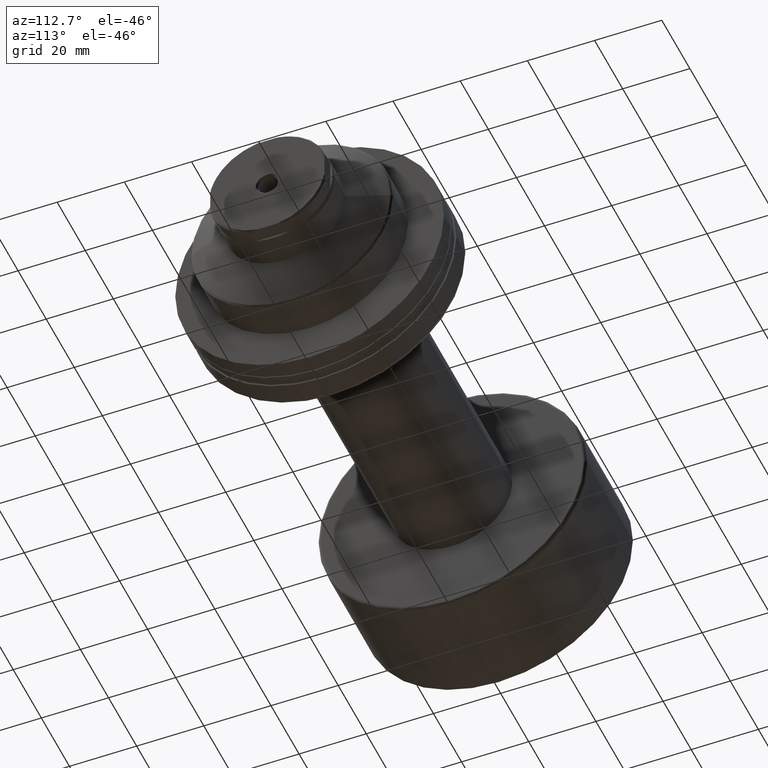
[diagram: clean part render]
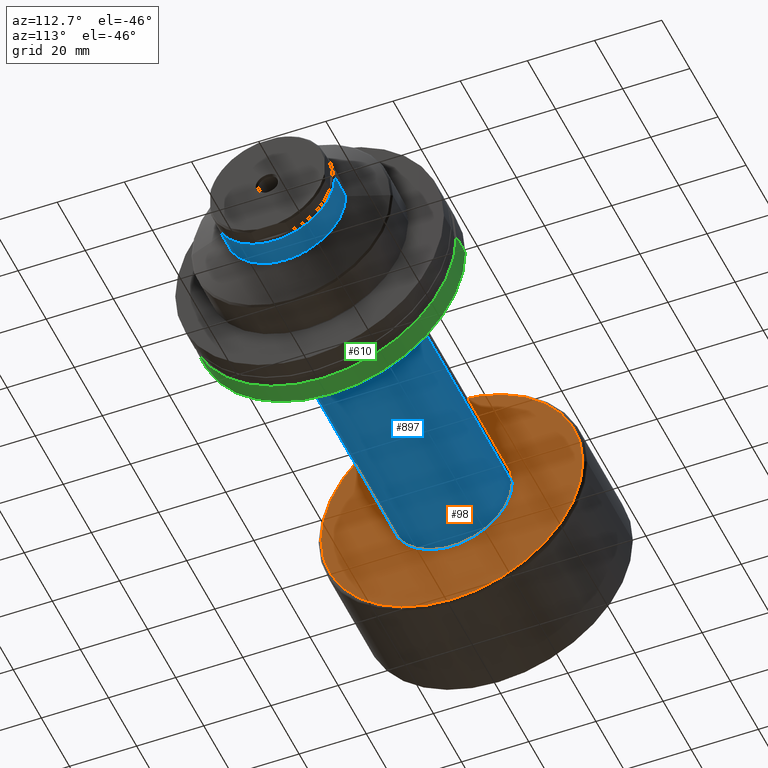
[diagram: same view with three faces highlighted in distinct colors, each labeled with its STEP entity id]
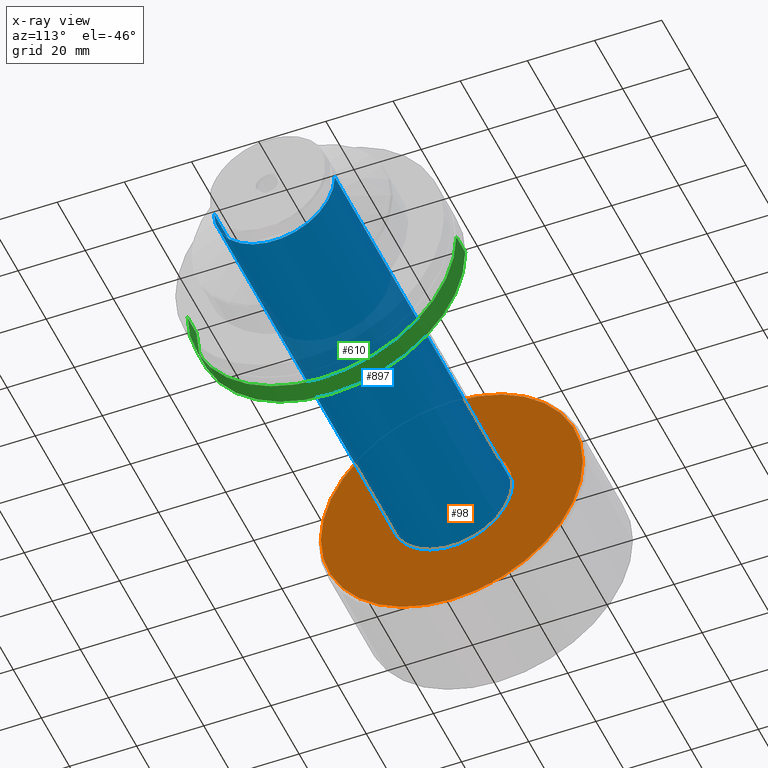
[diagram: x-ray of the same camera — body ghosted, the three highlighted faces saturated]
A machine part, auxiliary view with three faces highlighted in distinct colors.
The next image is the same camera in x-ray (body ghosted, the three faces saturated) — at least one of them is partly hidden behind the body in this view.
Their STEP definitions:

[orange] entity #98 — the highlighted planar face has unit normal (-1, -0, 0).
#24 = CIRCLE ( 'NONE', #120, 18.00000000000000000 ) ;
#25 = CIRCLE ( 'NONE', #1088, 38.99999999999999289 ) ;
#88 = CARTESIAN_POINT ( 'NONE',  ( 34.70000000000001705, -18.00000000000000000, 0.000000000000000000 ) ) ;
#98 = ADVANCED_FACE ( 'NONE', ( #1427, #1523 ), #1666, .F. ) ;
#112 = CARTESIAN_POINT ( 'NONE',  ( 34.70000000000001705, -38.99999999999999289, 0.000000000000000000 ) ) ;
#120 = AXIS2_PLACEMENT_3D ( 'NONE', #779, #1430, #560 ) ;
#173 = DIRECTION ( 'NONE',  ( -1.000000000000000000, -1.069542322069065801E-17, -0.000000000000000000 ) ) ;
#336 = ORIENTED_EDGE ( 'NONE', *, *, #1759, .F. ) ;
#379 = EDGE_CURVE ( 'NONE', #876, #1067, #25, .T. ) ;
#459 = EDGE_LOOP ( 'NONE', ( #336, #2244 ) ) ;
#479 = AXIS2_PLACEMENT_3D ( 'NONE', #1443, #587, #1995 ) ;
#547 = EDGE_CURVE ( 'NONE', #1848, #575, #1898, .T. ) ;
#560 = DIRECTION ( 'NONE',  ( 0.000000000000000000, -1.000000000000000000, 0.000000000000000000 ) ) ;
#575 = VERTEX_POINT ( 'NONE', #1383 ) ;
#587 = DIRECTION ( 'NONE',  ( -1.000000000000000000, -1.069542322069065801E-17, -0.000000000000000000 ) ) ;
#640 = CARTESIAN_POINT ( 'NONE',  ( 34.70000000000001705, -18.00000000000000000, 0.000000000000000000 ) ) ;
#718 = CIRCLE ( 'NONE', #2036, 38.99999999999999289 ) ;
#779 = CARTESIAN_POINT ( 'NONE',  ( 34.70000000000001705, 3.711311857579660173E-16, 0.000000000000000000 ) ) ;
#795 = EDGE_LOOP ( 'NONE', ( #2057, #1281 ) ) ;
#876 = VERTEX_POINT ( 'NONE', #928 ) ;
#928 = CARTESIAN_POINT ( 'NONE',  ( 34.70000000000001705, 38.99999999999999289, 4.837354856632044663E-15 ) ) ;
#1067 = VERTEX_POINT ( 'NONE', #112 ) ;
#1088 = AXIS2_PLACEMENT_3D ( 'NONE', #1203, #173, #2192 ) ;
#1203 = CARTESIAN_POINT ( 'NONE',  ( 34.70000000000001705, 3.711311857579660173E-16, 0.000000000000000000 ) ) ;
#1225 = AXIS2_PLACEMENT_3D ( 'NONE', #88, #2060, #2081 ) ;
#1281 = ORIENTED_EDGE ( 'NONE', *, *, #2242, .T. ) ;
#1305 = DIRECTION ( 'NONE',  ( -1.000000000000000000, -1.069542322069065801E-17, -0.000000000000000000 ) ) ;
#1331 = CARTESIAN_POINT ( 'NONE',  ( 34.70000000000001705, 3.711311857579660173E-16, 0.000000000000000000 ) ) ;
#1383 = CARTESIAN_POINT ( 'NONE',  ( 34.70000000000001705, 18.00000000000000000, 2.204364238465241739E-15 ) ) ;
#1427 = FACE_OUTER_BOUND ( 'NONE', #459, .T. ) ;
#1430 = DIRECTION ( 'NONE',  ( -1.000000000000000000, -1.069542322069065801E-17, -0.000000000000000000 ) ) ;
#1443 = CARTESIAN_POINT ( 'NONE',  ( 34.70000000000001705, 3.711311857579660173E-16, 0.000000000000000000 ) ) ;
#1523 = FACE_BOUND ( 'NONE', #795, .T. ) ;
#1666 = PLANE ( 'NONE',  #1225 ) ;
#1669 = DIRECTION ( 'NONE',  ( 0.000000000000000000, -1.000000000000000000, 0.000000000000000000 ) ) ;
#1759 = EDGE_CURVE ( 'NONE', #1067, #876, #718, .T. ) ;
#1848 = VERTEX_POINT ( 'NONE', #640 ) ;
#1898 = CIRCLE ( 'NONE', #479, 18.00000000000000000 ) ;
#1995 = DIRECTION ( 'NONE',  ( 0.000000000000000000, -1.000000000000000000, 0.000000000000000000 ) ) ;
#2036 = AXIS2_PLACEMENT_3D ( 'NONE', #1331, #1305, #1669 ) ;
#2057 = ORIENTED_EDGE ( 'NONE', *, *, #547, .T. ) ;
#2060 = DIRECTION ( 'NONE',  ( -1.000000000000000000, -1.069542322069065801E-17, 0.000000000000000000 ) ) ;
#2081 = DIRECTION ( 'NONE',  ( 1.069542322069065801E-17, -1.000000000000000000, 0.000000000000000000 ) ) ;
#2192 = DIRECTION ( 'NONE',  ( 0.000000000000000000, -1.000000000000000000, 0.000000000000000000 ) ) ;
#2242 = EDGE_CURVE ( 'NONE', #575, #1848, #24, .T. ) ;
#2244 = ORIENTED_EDGE ( 'NONE', *, *, #379, .F. ) ;

[blue] entity #897 — the highlighted cylindrical surface (partial cylindrical patch) has radius 18 mm, axis along (-1, -0, -0).
#4 = ORIENTED_EDGE ( 'NONE', *, *, #2190, .T. ) ;
#24 = CIRCLE ( 'NONE', #120, 18.00000000000000000 ) ;
#33 = ORIENTED_EDGE ( 'NONE', *, *, #559, .F. ) ;
#120 = AXIS2_PLACEMENT_3D ( 'NONE', #779, #1430, #560 ) ;
#155 = DIRECTION ( 'NONE',  ( -1.000000000000000000, -1.069542322069065801E-17, -0.000000000000000000 ) ) ;
#418 = ORIENTED_EDGE ( 'NONE', *, *, #2242, .F. ) ;
#421 = DIRECTION ( 'NONE',  ( 1.069542322069065801E-17, -1.000000000000000000, 0.000000000000000000 ) ) ;
#501 = FACE_OUTER_BOUND ( 'NONE', #1575, .T. ) ;
#524 = DIRECTION ( 'NONE',  ( -1.000000000000000000, -1.069542322069065801E-17, -0.000000000000000000 ) ) ;
#559 = EDGE_CURVE ( 'NONE', #1333, #575, #1349, .T. ) ;
#560 = DIRECTION ( 'NONE',  ( 0.000000000000000000, -1.000000000000000000, 0.000000000000000000 ) ) ;
#575 = VERTEX_POINT ( 'NONE', #1383 ) ;
#596 = EDGE_CURVE ( 'NONE', #926, #1848, #1465, .T. ) ;
#640 = CARTESIAN_POINT ( 'NONE',  ( 34.70000000000001705, -18.00000000000000000, 0.000000000000000000 ) ) ;
#774 = CARTESIAN_POINT ( 'NONE',  ( 161.0667575123237896, 18.00000000000019185, 2.204364238465259094E-15 ) ) ;
#779 = CARTESIAN_POINT ( 'NONE',  ( 34.70000000000001705, 3.711311857579660173E-16, 0.000000000000000000 ) ) ;
#780 = VECTOR ( 'NONE', #2286, 1000.000000000000000 ) ;
#897 = ADVANCED_FACE ( 'NONE', ( #501 ), #1166, .T. ) ;
#926 = VERTEX_POINT ( 'NONE', #1502 ) ;
#1043 = AXIS2_PLACEMENT_3D ( 'NONE', #2158, #1611, #1309 ) ;
#1166 = CYLINDRICAL_SURFACE ( 'NONE', #1792, 18.00000000000009592 ) ;
#1267 = CARTESIAN_POINT ( 'NONE',  ( 1.925176179724328764E-16, -18.00000000000009592, 0.000000000000000000 ) ) ;
#1309 = DIRECTION ( 'NONE',  ( 0.000000000000000000, -1.000000000000000000, 0.000000000000000000 ) ) ;
#1333 = VERTEX_POINT ( 'NONE', #774 ) ;
#1349 = LINE ( 'NONE', #1825, #1404 ) ;
#1383 = CARTESIAN_POINT ( 'NONE',  ( 34.70000000000001705, 18.00000000000000000, 2.204364238465241739E-15 ) ) ;
#1404 = VECTOR ( 'NONE', #155, 1000.000000000000000 ) ;
#1430 = DIRECTION ( 'NONE',  ( -1.000000000000000000, -1.069542322069065801E-17, -0.000000000000000000 ) ) ;
#1465 = LINE ( 'NONE', #1267, #780 ) ;
#1502 = CARTESIAN_POINT ( 'NONE',  ( 161.0667575123237896, -18.00000000000019185, 0.000000000000000000 ) ) ;
#1575 = EDGE_LOOP ( 'NONE', ( #33, #4, #2095, #418 ) ) ;
#1611 = DIRECTION ( 'NONE',  ( -1.000000000000000000, -1.069542322069065801E-17, -0.000000000000000000 ) ) ;
#1665 = CIRCLE ( 'NONE', #1043, 18.00000000000019185 ) ;
#1792 = AXIS2_PLACEMENT_3D ( 'NONE', #2215, #524, #421 ) ;
#1825 = CARTESIAN_POINT ( 'NONE',  ( -1.925176179724328764E-16, 18.00000000000009592, 2.204364238465247261E-15 ) ) ;
#1848 = VERTEX_POINT ( 'NONE', #640 ) ;
#2095 = ORIENTED_EDGE ( 'NONE', *, *, #596, .T. ) ;
#2158 = CARTESIAN_POINT ( 'NONE',  ( 161.0667575123237896, 1.722677138378659449E-15, 0.000000000000000000 ) ) ;
#2190 = EDGE_CURVE ( 'NONE', #1333, #926, #1665, .T. ) ;
#2215 = CARTESIAN_POINT ( 'NONE',  ( 0.000000000000000000, 0.000000000000000000, 0.000000000000000000 ) ) ;
#2242 = EDGE_CURVE ( 'NONE', #575, #1848, #24, .T. ) ;
#2286 = DIRECTION ( 'NONE',  ( -1.000000000000000000, -1.069542322069065801E-17, -0.000000000000000000 ) ) ;

[green] entity #610 — the highlighted cylindrical surface (partial cylindrical patch) has radius 40 mm, axis along (1, 0, 0).
#10 = VERTEX_POINT ( 'NONE', #908 ) ;
#89 = AXIS2_PLACEMENT_3D ( 'NONE', #1205, #1919, #1963 ) ;
#175 = LINE ( 'NONE', #473, #569 ) ;
#190 = EDGE_LOOP ( 'NONE', ( #884, #1650, #1079, #191 ) ) ;
#191 = ORIENTED_EDGE ( 'NONE', *, *, #2051, .F. ) ;
#333 = CARTESIAN_POINT ( 'NONE',  ( -32.80878161770239387, -9.452872267328581409E-16, 0.000000000000000000 ) ) ;
#473 = CARTESIAN_POINT ( 'NONE',  ( -30.28002276692730987, -40.00000000000000711, 4.898587196589413815E-15 ) ) ;
#493 = VERTEX_POINT ( 'NONE', #2188 ) ;
#499 = FACE_OUTER_BOUND ( 'NONE', #190, .T. ) ;
#526 = VECTOR ( 'NONE', #1373, 1000.000000000000000 ) ;
#569 = VECTOR ( 'NONE', #619, 1000.000000000000000 ) ;
#610 = ADVANCED_FACE ( 'NONE', ( #499 ), #2139, .T. ) ;
#619 = DIRECTION ( 'NONE',  ( 1.000000000000000000, 3.738146982434194072E-16, -0.000000000000000000 ) ) ;
#673 = CIRCLE ( 'NONE', #1298, 40.00000000000000711 ) ;
#679 = EDGE_CURVE ( 'NONE', #10, #493, #175, .T. ) ;
#680 = LINE ( 'NONE', #1216, #526 ) ;
#853 = DIRECTION ( 'NONE',  ( -3.469446951953613696E-16, 1.000000000000000000, 0.000000000000000000 ) ) ;
#884 = ORIENTED_EDGE ( 'NONE', *, *, #679, .F. ) ;
#886 = VERTEX_POINT ( 'NONE', #909 ) ;
#908 = CARTESIAN_POINT ( 'NONE',  ( -39.20000000000018048, -40.00000000000001421, 4.898587196589413815E-15 ) ) ;
#909 = CARTESIAN_POINT ( 'NONE',  ( -32.80878161770240808, 40.00000000000000711, 0.000000000000000000 ) ) ;
#925 = EDGE_CURVE ( 'NONE', #10, #1477, #673, .T. ) ;
#1029 = DIRECTION ( 'NONE',  ( 1.000000000000000000, 3.738146982434194072E-16, -0.000000000000000000 ) ) ;
#1079 = ORIENTED_EDGE ( 'NONE', *, *, #2019, .T. ) ;
#1205 = CARTESIAN_POINT ( 'NONE',  ( -30.28002276692732408, 0.000000000000000000, 0.000000000000000000 ) ) ;
#1216 = CARTESIAN_POINT ( 'NONE',  ( -30.28002276692733830, 40.00000000000000711, 0.000000000000000000 ) ) ;
#1298 = AXIS2_PLACEMENT_3D ( 'NONE', #1456, #2024, #1621 ) ;
#1373 = DIRECTION ( 'NONE',  ( 1.000000000000000000, 3.738146982434194072E-16, -0.000000000000000000 ) ) ;
#1456 = CARTESIAN_POINT ( 'NONE',  ( -39.20000000000019469, -3.334418597719306597E-15, 0.000000000000000000 ) ) ;
#1477 = VERTEX_POINT ( 'NONE', #1968 ) ;
#1544 = CIRCLE ( 'NONE', #1698, 40.00000000000000711 ) ;
#1621 = DIRECTION ( 'NONE',  ( -3.469446951953613696E-16, 1.000000000000000000, 0.000000000000000000 ) ) ;
#1650 = ORIENTED_EDGE ( 'NONE', *, *, #925, .T. ) ;
#1698 = AXIS2_PLACEMENT_3D ( 'NONE', #333, #1029, #853 ) ;
#1919 = DIRECTION ( 'NONE',  ( 1.000000000000000000, 3.738146982434194072E-16, -0.000000000000000000 ) ) ;
#1963 = DIRECTION ( 'NONE',  ( -3.469446951953613696E-16, 1.000000000000000000, 0.000000000000000000 ) ) ;
#1968 = CARTESIAN_POINT ( 'NONE',  ( -39.20000000000020890, 40.00000000000000000, 0.000000000000000000 ) ) ;
#2019 = EDGE_CURVE ( 'NONE', #1477, #886, #680, .T. ) ;
#2024 = DIRECTION ( 'NONE',  ( 1.000000000000000000, 3.738146982434194072E-16, -0.000000000000000000 ) ) ;
#2051 = EDGE_CURVE ( 'NONE', #493, #886, #1544, .T. ) ;
#2139 = CYLINDRICAL_SURFACE ( 'NONE', #89, 40.00000000000000711 ) ;
#2188 = CARTESIAN_POINT ( 'NONE',  ( -32.80878161770237966, -40.00000000000000711, 4.898587196589413815E-15 ) ) ;